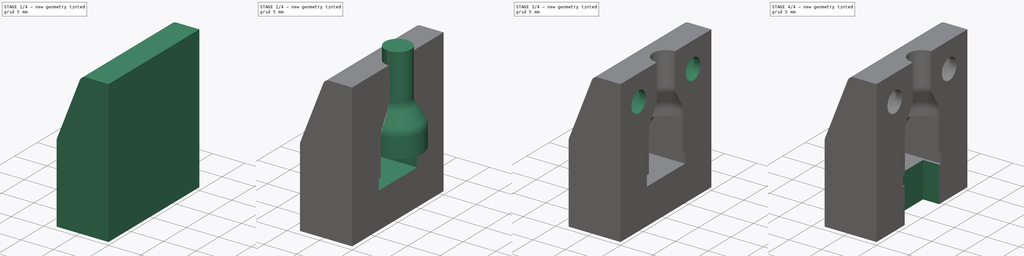
[diagram: build sequence overview — one tinted view per stage of 4, left to right]
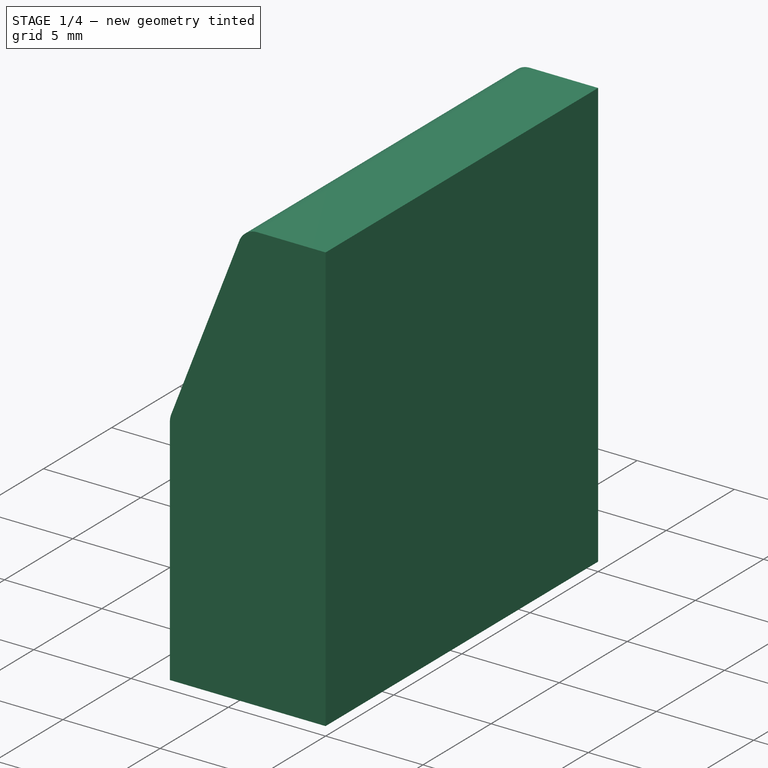
[diagram: stage 1 of 4 — iso view after this stage's code; geometry added in this stage tinted green]
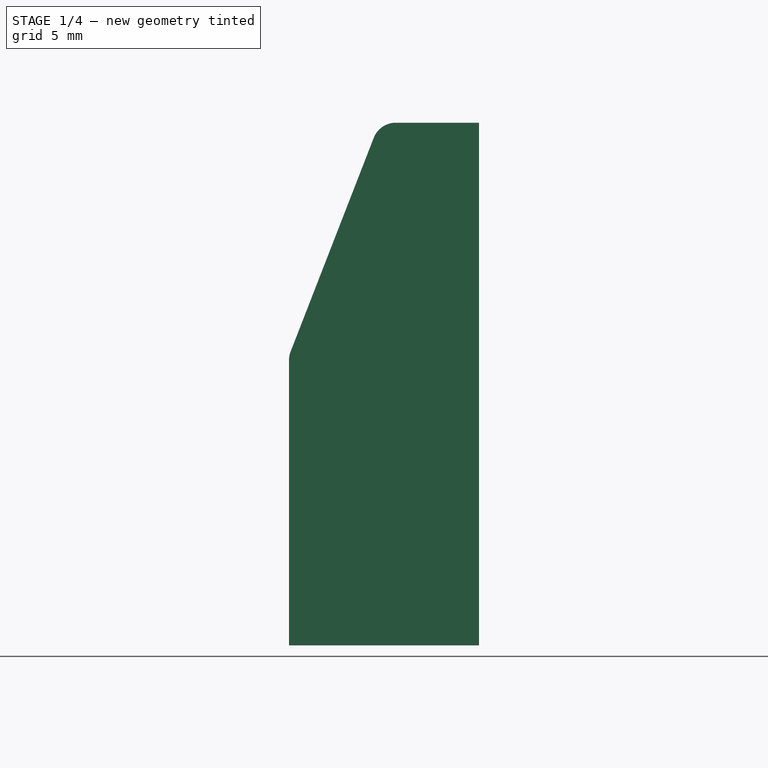
[diagram: stage 1 of 4 — front view after this stage's code; geometry added in this stage tinted green]
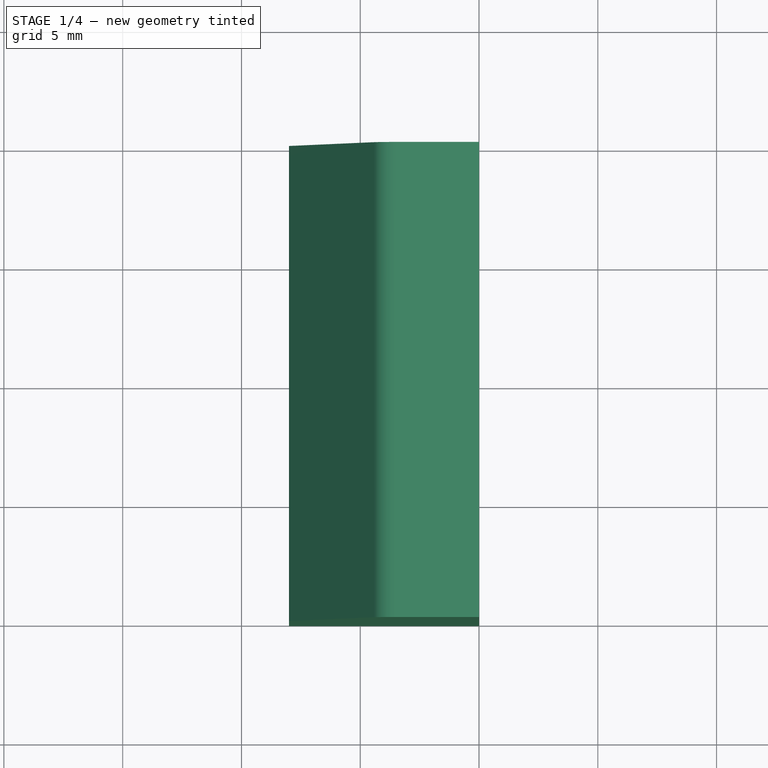
[diagram: stage 1 of 4 — top view after this stage's code; geometry added in this stage tinted green]
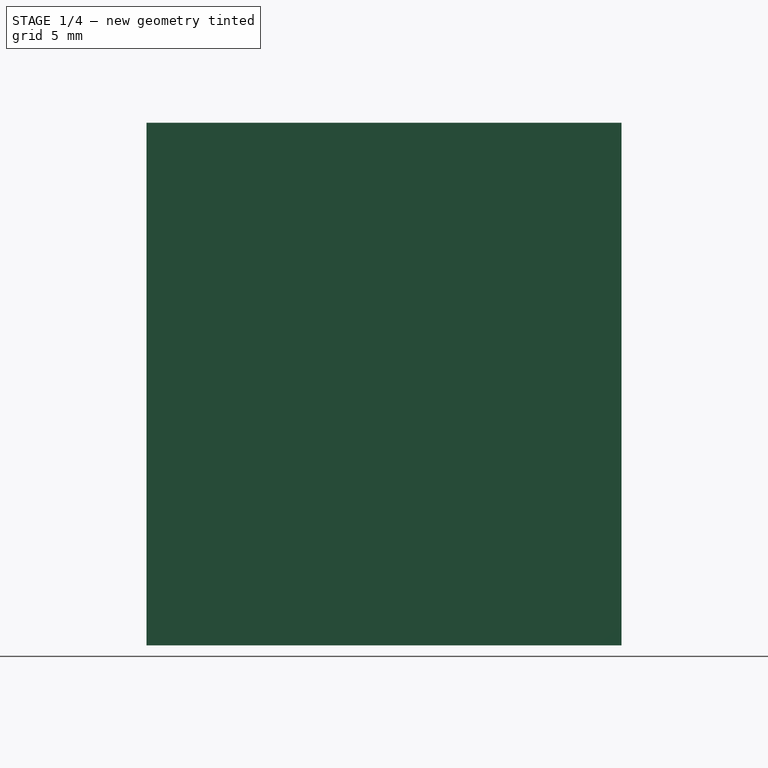
[diagram: stage 1 of 4 — right view after this stage's code; geometry added in this stage tinted green]
FCSTD DOCUMENT  (FreeCAD 0.16R6712 (Git))
Label: Coquille-1-Adaptateur-ICSP-6
License: All rights reserved
LicenseURL: http://en.wikipedia.org/wiki/All_rights_reserved
objects: Sketcher::SketchObject×8, PartDesign::Pocket×5, PartDesign::Pad×2, Part::Cut×2, App::VRMLObject×1, PartDesign::Revolution×1
note: 26 computed .brp shape members not serialized (recipe doc carries the construction recipe); baked Part::Feature solids carry a one-line shape summary decoded from their .brp

FEATURE [App::VRMLObject] CarteAdapt_ICSP6  label="CarteAdapt-ICSP6"
  Placement = pos=(-124,89,6.3) rot=(0,0,1;0rad)
FEATURE [Sketcher::SketchObject] Sketch
  Placement = pos=(0,0,0) rot=(-1,0,0;4.71239rad)
  sketch-geometry (7):
    g0: LineSegment StartX=0 StartY=0 StartZ=0 EndX=0 EndY=22 EndZ=0
    g1: LineSegment StartX=0 StartY=22 StartZ=0 EndX=-3.5 EndY=22 EndZ=0
    g2: LineSegment StartX=-4.432 StartY=21.3624 StartZ=0 EndX=-7.932 EndY=12.3624 EndZ=0
    g3: LineSegment StartX=-8 StartY=12 StartZ=0 EndX=-8 EndY=0 EndZ=0
    g4: LineSegment StartX=-8 StartY=0 StartZ=0 EndX=0 EndY=0 EndZ=0
    g5: ArcOfCircle CenterX=-7 CenterY=12 CenterZ=0 NormalX=0 NormalY=0 NormalZ=1 Radius=1 StartAngle=2.7707 EndAngle=3.14159
    g6: ArcOfCircle CenterX=-3.5 CenterY=21 CenterZ=0 NormalX=0 NormalY=0 NormalZ=1 Radius=1 StartAngle=1.5708 EndAngle=2.7707
  constraints (18):
    c: Vertical(g0)
    c: Coincident(g0,g1)
    c: Horizontal(g1)
    c: Vertical(g3)
    c: Coincident(g3,g4)
    c: Coincident(g4,g0)
    c: Horizontal(g4)
    c: Coincident(g0,g-1)
    c: DistanceX(g4,g4) = 8
    c: Tangent(g2,g5) = -1.5708
    c: Tangent(g3,g5) = -1.5708
    c: Tangent(g1,g6) = -1.5708
    c: Tangent(g2,g6) = -1.5708
    c: DistanceX(g1,g1) = 3.5
    c: Radius(g6) = 1
    c: Equal(g6,g5)
    c: DistanceY(g3,g3) = 12
    c: DistanceY(g0,g0) = 22
FEATURE [PartDesign::Pad] Pad
  Length = 20
  Length2 = 100
  Midplane = true
  Placement = pos=(0,0,0) rot=(-1,0,0;4.71239rad)
  Sketch = -> Sketch
  Type = 0
FEATURE [PartDesign::Pad] Pad001
  Length = 7.5
  Length2 = 100
  Midplane = true
  Placement = pos=(0,0,0) rot=(-1,0,0;4.71239rad)
  Sketch = -> Sketch005
  Type = 0
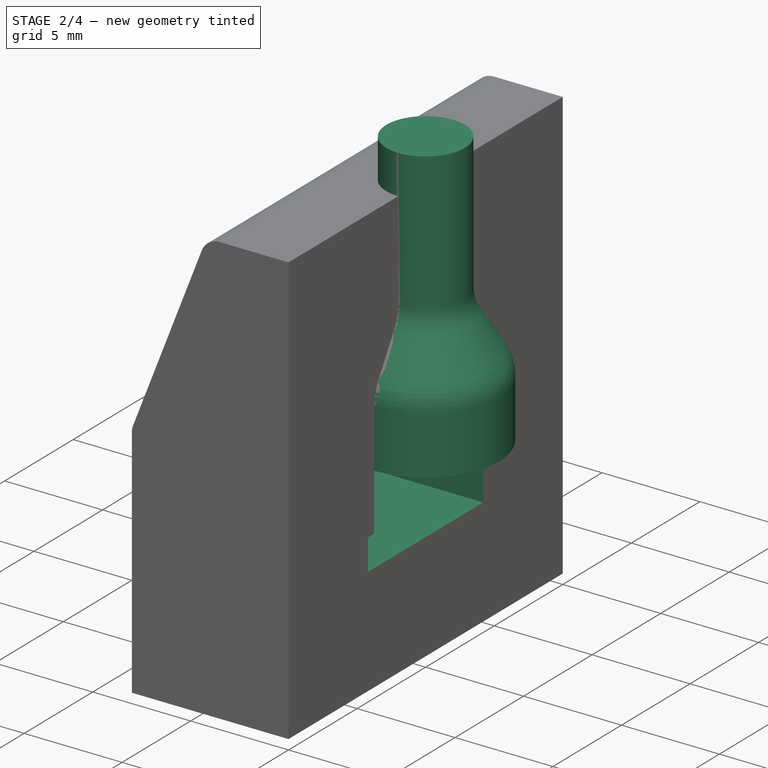
[diagram: stage 2 of 4 — iso view after this stage's code; geometry added in this stage tinted green]
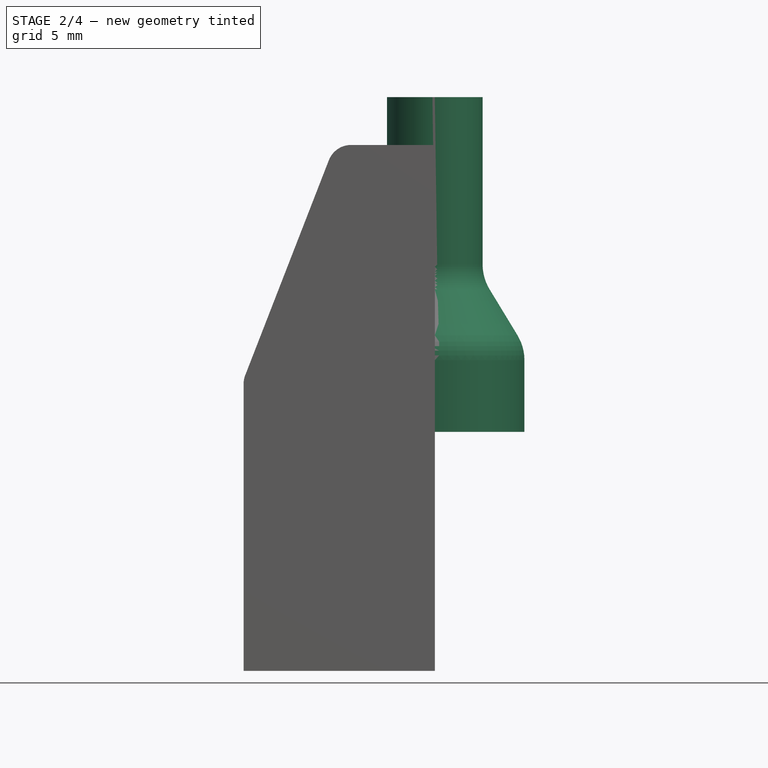
[diagram: stage 2 of 4 — front view after this stage's code; geometry added in this stage tinted green]
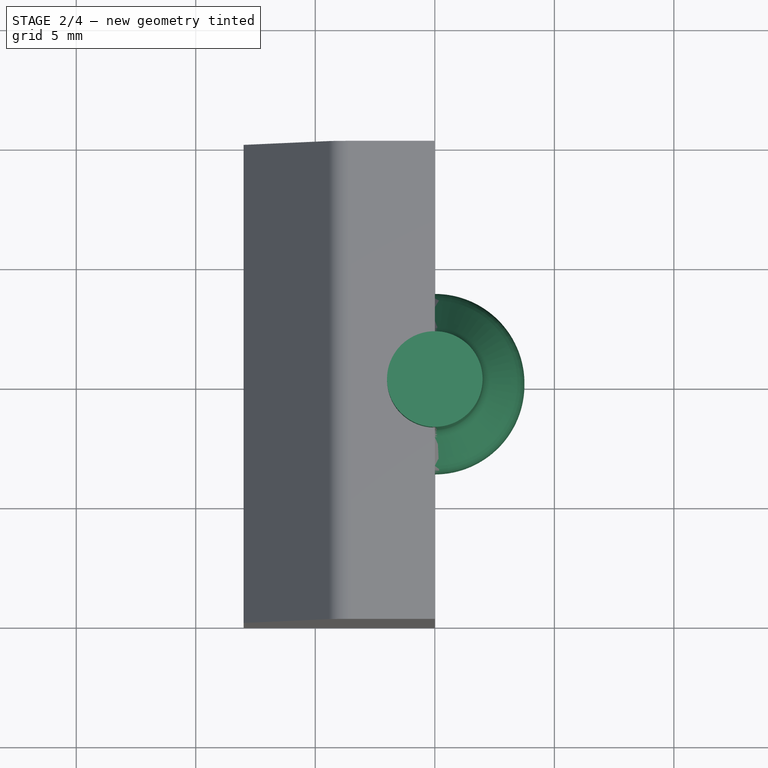
[diagram: stage 2 of 4 — top view after this stage's code; geometry added in this stage tinted green]
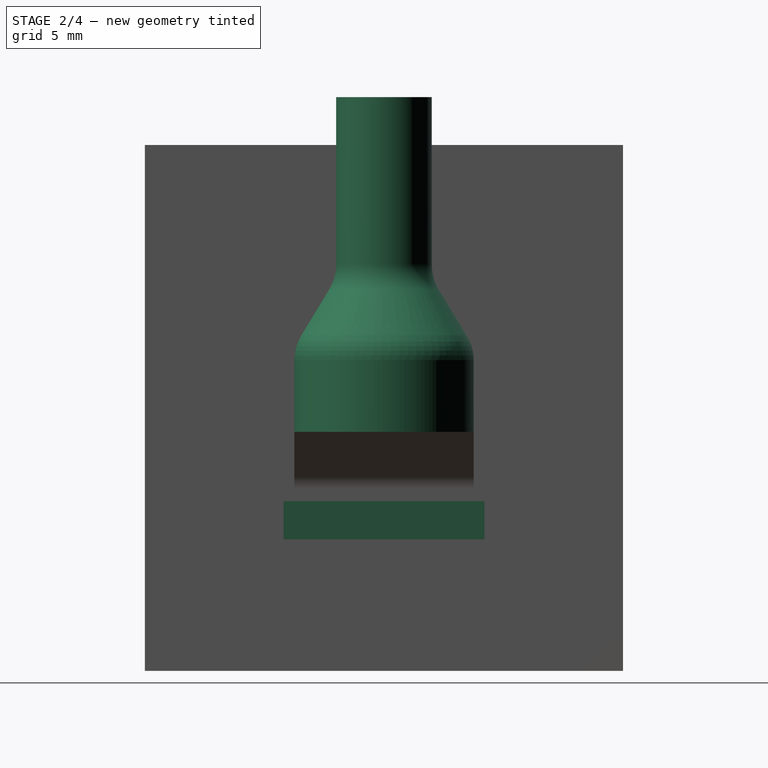
[diagram: stage 2 of 4 — right view after this stage's code; geometry added in this stage tinted green]
FEATURE [Sketcher::SketchObject] Sketch002
  Placement = pos=(0,0,0) rot=(0.707107,0,0.707107;3.14159rad)
  Support = -> Pad [Face1]
  sketch-geometry (4):
    g0: LineSegment StartX=5.5 StartY=4.2 StartZ=0 EndX=7.1 EndY=4.2 EndZ=0
    g1: LineSegment StartX=7.1 StartY=4.2 StartZ=0 EndX=7.1 EndY=-4.2 EndZ=0
    g2: LineSegment StartX=7.1 StartY=-4.2 StartZ=0 EndX=5.5 EndY=-4.2 EndZ=0
    g3: LineSegment StartX=5.5 StartY=-4.2 StartZ=0 EndX=5.5 EndY=4.2 EndZ=0
  constraints (12):
    c: Coincident(g0,g1)
    c: Coincident(g1,g2)
    c: Coincident(g2,g3)
    c: Coincident(g3,g0)
    c: Horizontal(g0)
    c: Horizontal(g2)
    c: Vertical(g1)
    c: Vertical(g3)
    c: DistanceX(g0) = 5.5
    c: DistanceX(g0,g0) = 1.6
    c: DistanceY(g3,g3) = 8.4
    c: DistanceY(g0) = 4.2
FEATURE [PartDesign::Pocket] Pocket
  Length = 7
  Placement = pos=(0,0,0) rot=(-1,0,0;4.71239rad)
  Sketch = -> Sketch002
  Type = 0
FEATURE [Sketcher::SketchObject] Sketch004
  Placement = pos=(0,0,0) rot=(0.57735,0.57735,0.57735;2.0944rad)
  sketch-geometry (8):
    g0: LineSegment StartX=0 StartY=24 StartZ=0 EndX=0 EndY=10 EndZ=0
    g1: LineSegment StartX=0 StartY=10 StartZ=0 EndX=3.75 EndY=10 EndZ=0
    g2: LineSegment StartX=3.75 StartY=10 StartZ=0 EndX=3.75 EndY=13 EndZ=0
    g3: LineSegment StartX=3.4592 StartY=14.0386 StartZ=0 EndX=2.2908 EndY=15.9614 EndZ=0
    g4: LineSegment StartX=2 StartY=17 StartZ=0 EndX=2 EndY=24 EndZ=0
    g5: LineSegment StartX=2 StartY=24 StartZ=0 EndX=0 EndY=24 EndZ=0
    g6: ArcOfCircle CenterX=4 CenterY=17 CenterZ=0 NormalX=0 NormalY=0 NormalZ=1 Radius=2 StartAngle=3.14159 EndAngle=3.68761
    g7: ArcOfCircle CenterX=1.75 CenterY=13 CenterZ=0 NormalX=0 NormalY=0 NormalZ=1 Radius=2 StartAngle=0 EndAngle=0.546017
  constraints (22):
    c: Vertical(g0)
    c: Coincident(g0,g1)
    c: Coincident(g1,g2)
    c: Vertical(g2)
    c: Vertical(g4)
    c: Coincident(g4,g5)
    c: Coincident(g5,g0)
    c: Horizontal(g5)
    c: Horizontal(g1)
    c: PointOnObject(g0,g-2)
    c: DistanceX(g1,g1) = 3.75
    c: DistanceY(g0) = 10
    c: DistanceY(g0,g0) = 14
    c: DistanceX(g5,g5) = 2
    c: Tangent(g4,g6) = 1.5708
    c: Tangent(g3,g6) = 1.5708
    c: Tangent(g3,g7) = -1.5708
    c: Tangent(g2,g7) = -1.5708
    c: DistanceY(g2,g2) = 3
    c: Radius(g7) = 2
    c: Equal(g6,g7)
    c: DistanceY(g1,g4) = 7
FEATURE [Sketcher::SketchObject] Sketch005
  Placement = pos=(0,0,0) rot=(-1,0,0;4.71239rad)
  sketch-geometry (6):
    g0: LineSegment StartX=-6.5 StartY=7.1 StartZ=0 EndX=-6.5 EndY=7.6 EndZ=0
    g1: LineSegment StartX=-6.3302 StartY=8.15747 StartZ=0 EndX=-3.75 EndY=12 EndZ=0
    g2: LineSegment StartX=-3.75 StartY=12 StartZ=0 EndX=0 EndY=12 EndZ=0
    g3: LineSegment StartX=0 StartY=12 StartZ=0 EndX=0 EndY=7.1 EndZ=0
    g4: LineSegment StartX=0 StartY=7.1 StartZ=0 EndX=-6.5 EndY=7.1 EndZ=0
    g5: ArcOfCircle CenterX=-5.5 CenterY=7.6 CenterZ=0 NormalX=0 NormalY=0 NormalZ=1 Radius=1 StartAngle=2.55026 EndAngle=3.14159
  constraints (17):
    c: Vertical(g0)
    c: Coincident(g1,g2)
    c: Horizontal(g2)
    c: Coincident(g2,g3)
    c: Vertical(g3)
    c: Coincident(g3,g4)
    c: Horizontal(g4)
    c: Coincident(g4,g0)
    c: PointOnObject(g3,g-2)
    c: DistanceX(g2,g2) = 3.75
    c: DistanceY(g3) = 7.1
    c: DistanceX(g4,g4) = 6.5
    c: DistanceY(g2) = 12
    c: Tangent(g0,g5) = 1.5708
    c: Tangent(g1,g5) = 1.5708
    c: Radius(g5) = 1
    c: DistanceY(g0,g0) = 0.5
FEATURE [PartDesign::Revolution] Revolution
  Angle = 360
  Axis = (0,0,1)
  Base = (0,0,0)
  Placement = pos=(0,0,0) rot=(0.57735,0.57735,0.57735;2.0944rad)
  ReferenceAxis = -> Sketch004 [V_Axis]
  Reversed = true
  Sketch = -> Sketch004
FEATURE [Part::Cut] Cut
  Base = -> Pocket
  Tool = -> Pad001
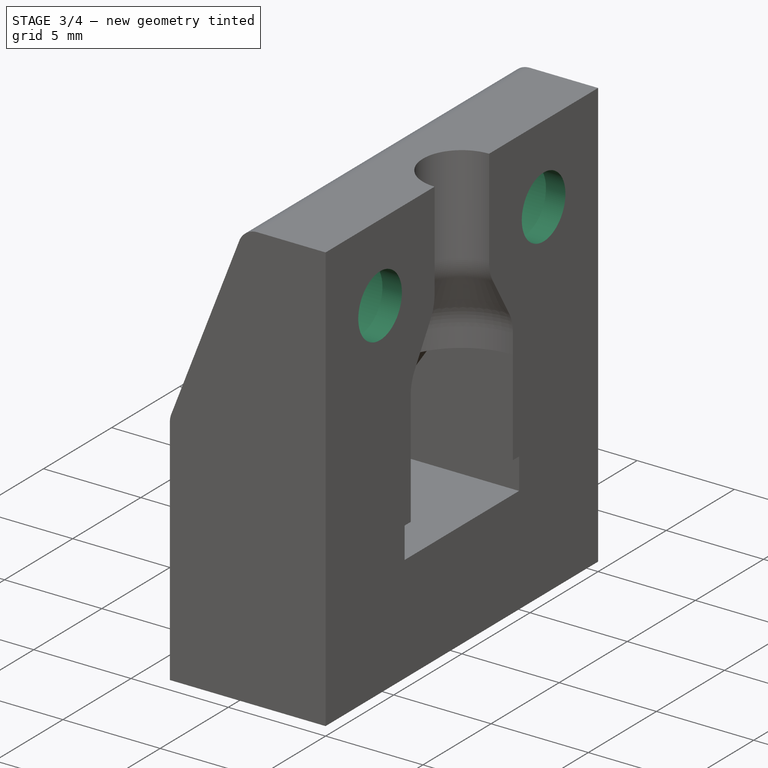
[diagram: stage 3 of 4 — iso view after this stage's code; geometry added in this stage tinted green]
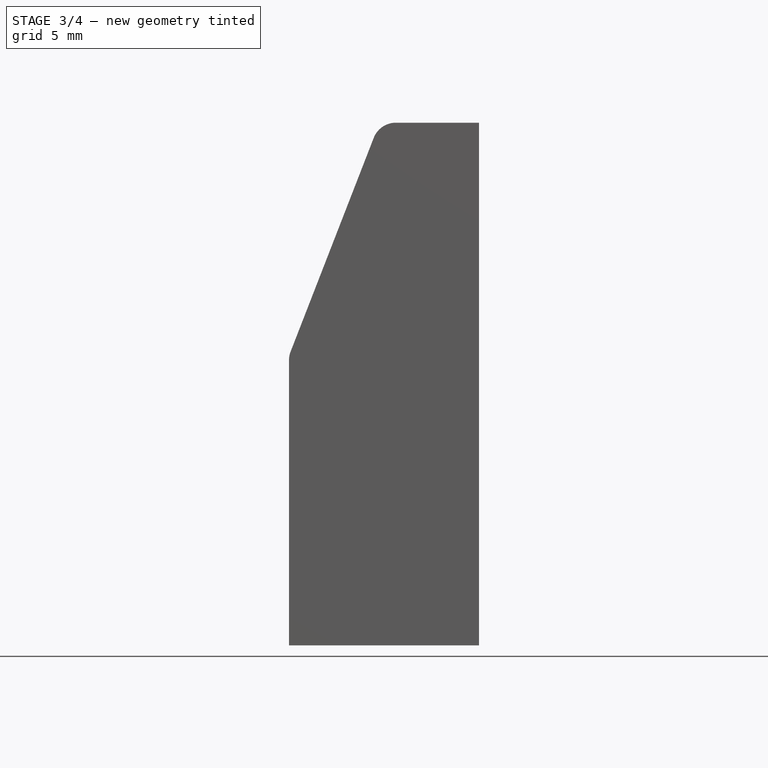
[diagram: stage 3 of 4 — front view after this stage's code; geometry added in this stage tinted green]
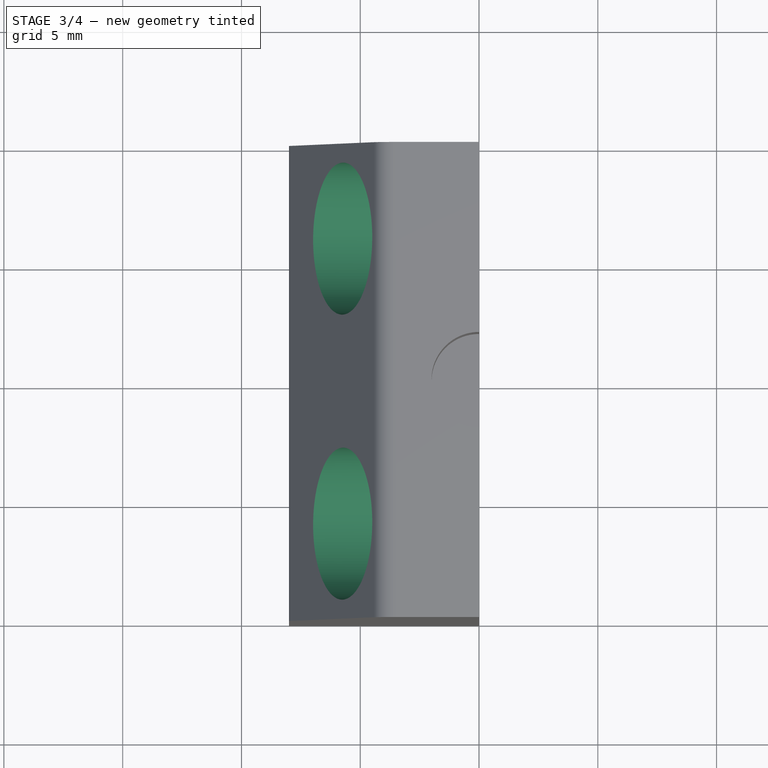
[diagram: stage 3 of 4 — top view after this stage's code; geometry added in this stage tinted green]
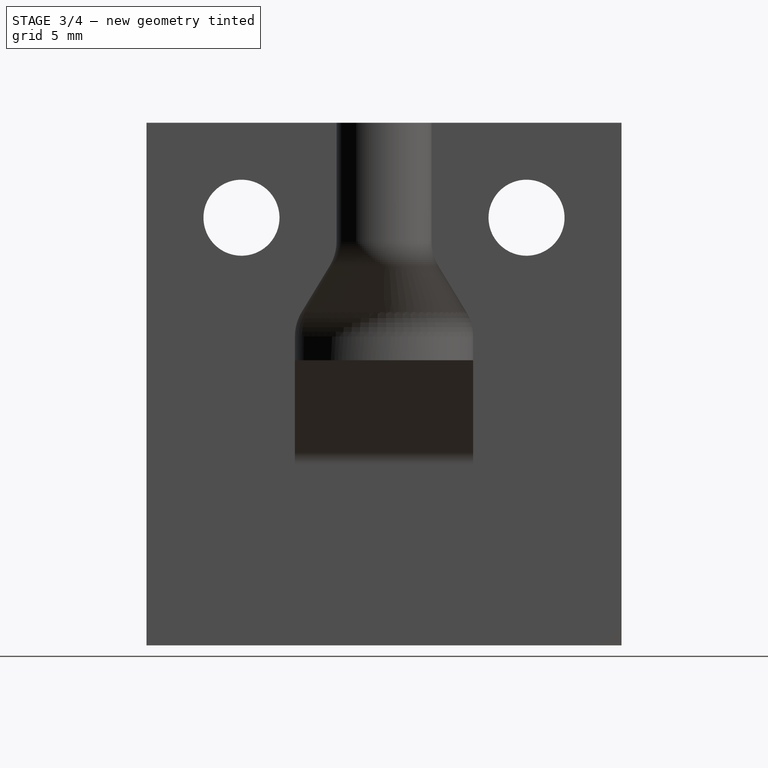
[diagram: stage 3 of 4 — right view after this stage's code; geometry added in this stage tinted green]
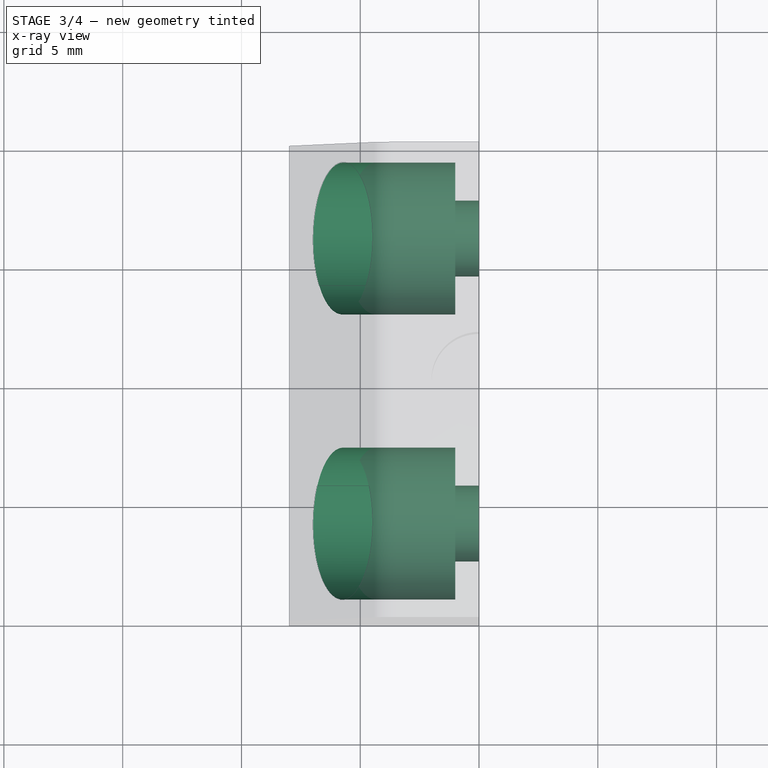
[diagram: stage 3 of 4 — x-ray composite at the top view; earlier geometry ghosted, this stage's added geometry solid]
FEATURE [Part::Cut] Cut001
  Base = -> Cut
  Tool = -> Revolution
FEATURE [Sketcher::SketchObject] Sketch006
  Placement = pos=(-8,0,0) rot=(0.57735,-0.57735,-0.57735;2.0944rad)
  Support = -> Cut001 [Face20]
  sketch-geometry (3):
    g0: Circle CenterX=-6 CenterY=18 CenterZ=0 NormalX=0 NormalY=0 NormalZ=1 Radius=3.2
    g1: Circle CenterX=6 CenterY=18 CenterZ=0 NormalX=0 NormalY=0 NormalZ=1 Radius=3.2
    g2: LineSegment [constr] StartX=-6 StartY=18 StartZ=0 EndX=6 EndY=18 EndZ=0
  constraints (8):
    c: Radius(g0) = 3.2
    c: Equal(g1,g0)
    c: Horizontal(g2)
    c: Coincident(g1,g2)
    c: DistanceX(g2,g2) = 12
    c: DistanceX(g1) = 6
    c: DistanceY(g1) = 18
    c: Coincident(g0,g2)
FEATURE [PartDesign::Pocket] Pocket001
  Length = 7
  Sketch = -> Sketch006
  Type = 0
FEATURE [Sketcher::SketchObject] Sketch007
  Placement = pos=(-8,0,0) rot=(0.57735,-0.57735,-0.57735;2.0944rad)
  Support = -> Pocket001 [Face20]
  sketch-geometry (3):
    g0: Circle CenterX=-6 CenterY=18 CenterZ=0 NormalX=0 NormalY=0 NormalZ=1 Radius=1.6
    g1: Circle CenterX=6 CenterY=18 CenterZ=0 NormalX=0 NormalY=0 NormalZ=1 Radius=1.6
    g2: LineSegment [constr] StartX=-6 StartY=18 StartZ=0 EndX=6 EndY=18 EndZ=0
  constraints (8):
    c: Radius(g0) = 1.6
    c: Equal(g1,g0)
    c: Horizontal(g2)
    c: Coincident(g1,g2)
    c: DistanceX(g2,g2) = 12
    c: DistanceX(g1) = 6
    c: DistanceY(g1) = 18
    c: Coincident(g0,g2)
FEATURE [PartDesign::Pocket] Pocket002
  Length = 8
  Sketch = -> Sketch007
  Type = 0
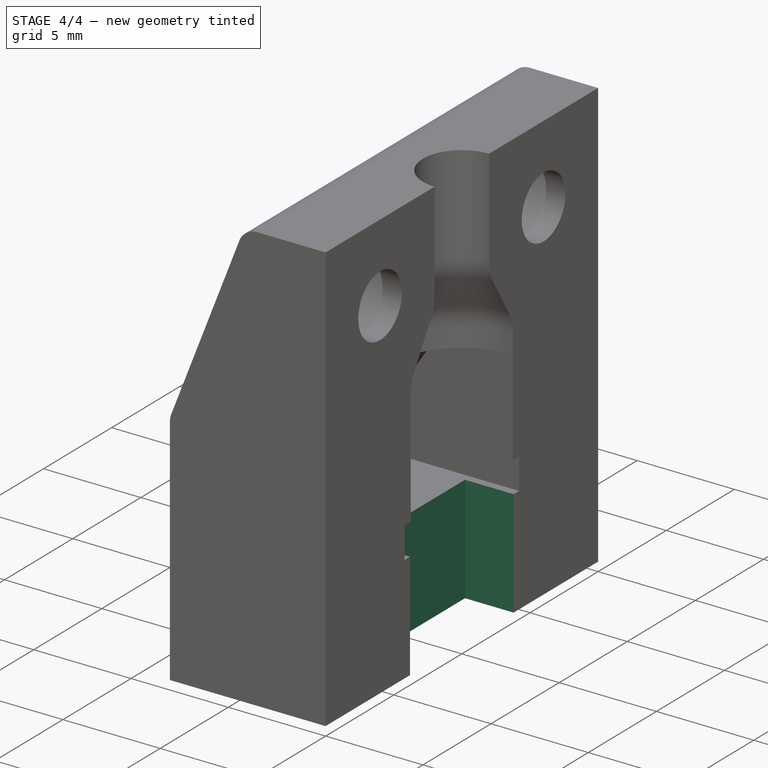
[diagram: stage 4 of 4 — iso view after this stage's code; geometry added in this stage tinted green]
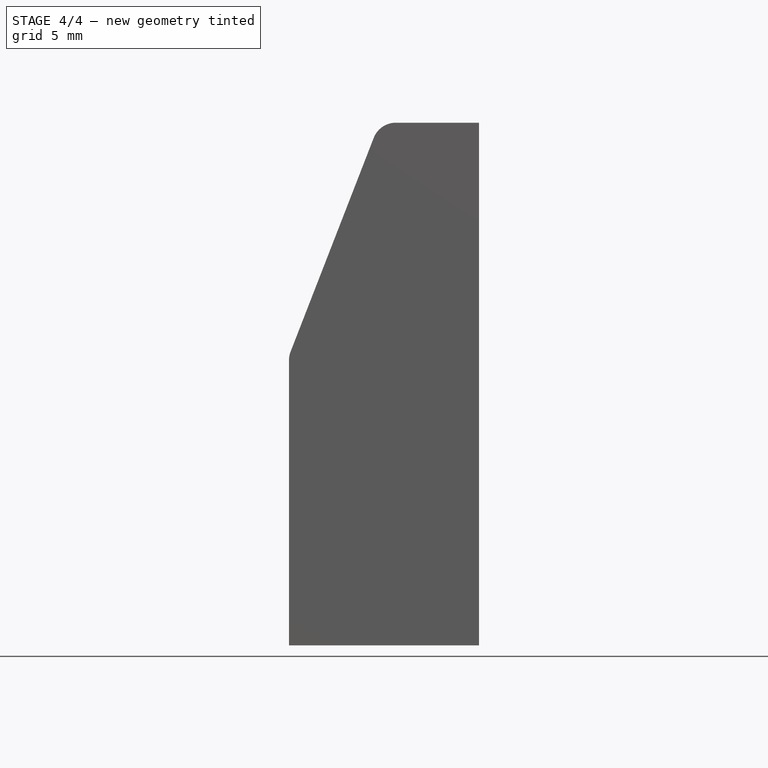
[diagram: stage 4 of 4 — front view after this stage's code; geometry added in this stage tinted green]
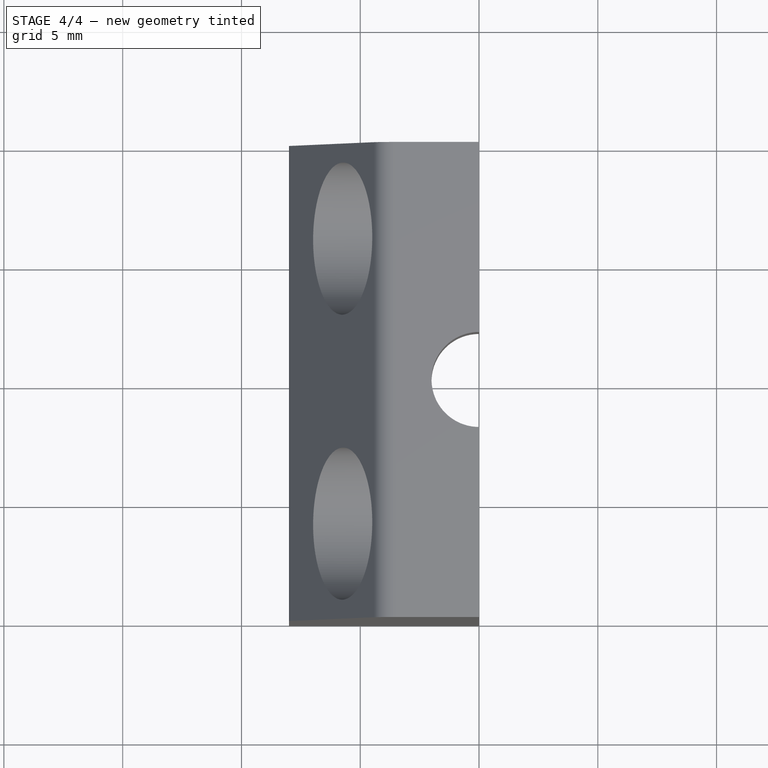
[diagram: stage 4 of 4 — top view after this stage's code; geometry added in this stage tinted green]
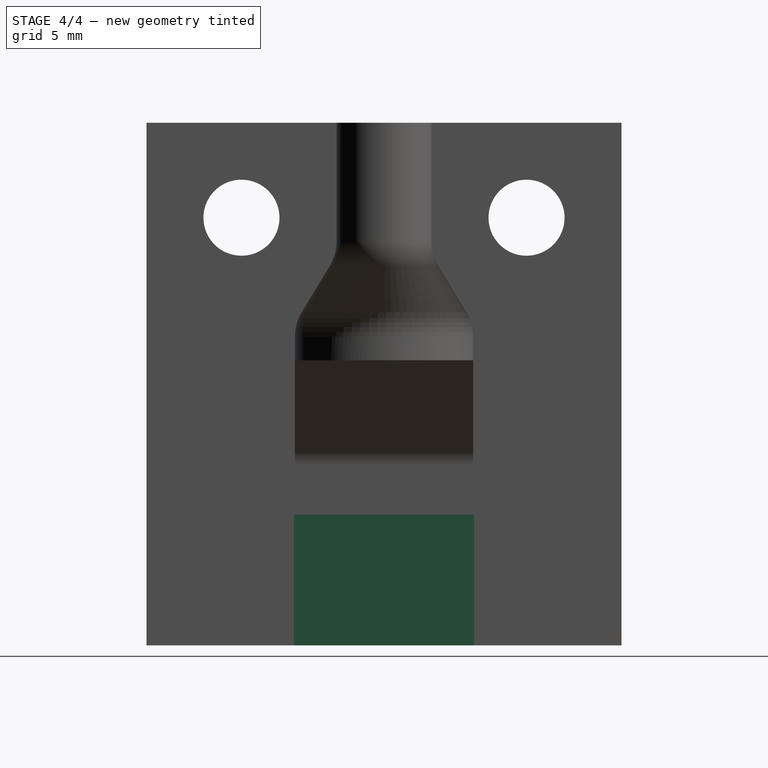
[diagram: stage 4 of 4 — right view after this stage's code; geometry added in this stage tinted green]
FEATURE [Sketcher::SketchObject] Sketch008
  Placement = pos=(0,0,0) rot=(1,0,0;3.14159rad)
  Support = -> Pocket002 [Face3]
  sketch-geometry (4):
    g0: LineSegment StartX=-2.5 StartY=3.8 StartZ=0 EndX=0 EndY=3.8 EndZ=0
    g1: LineSegment StartX=0 StartY=3.8 StartZ=0 EndX=0 EndY=-3.8 EndZ=0
    g2: LineSegment StartX=0 StartY=-3.8 StartZ=0 EndX=-2.5 EndY=-3.8 EndZ=0
    g3: LineSegment StartX=-2.5 StartY=-3.8 StartZ=0 EndX=-2.5 EndY=3.8 EndZ=0
  constraints (12):
    c: Coincident(g0,g1)
    c: Coincident(g1,g2)
    c: Coincident(g2,g3)
    c: Coincident(g3,g0)
    c: Horizontal(g0)
    c: Horizontal(g2)
    c: Vertical(g1)
    c: Vertical(g3)
    c: PointOnObject(g1,g-2)
    c: DistanceY(g3,g3) = 7.6
    c: DistanceY(g0) = 3.8
    c: DistanceX(g0,g0) = 2.5
FEATURE [PartDesign::Pocket] Pocket003
  Length = 5.5
  Sketch = -> Sketch008
  Type = 0
FEATURE [Sketcher::SketchObject] Sketch009
  Placement = pos=(0,0,0) rot=(1,0,0;3.14159rad)
  Support = -> Pocket003 [Face14]
  sketch-geometry (11):
    g0: LineSegment StartX=-9.5 StartY=7.5 StartZ=0 EndX=-6.5 EndY=7.5 EndZ=0
    g1: LineSegment StartX=-6.5 StartY=7.5 StartZ=0 EndX=-6.5 EndY=4.5 EndZ=0
    g2: LineSegment StartX=-6.5 StartY=4.5 StartZ=0 EndX=-9.5 EndY=4.5 EndZ=0
    g3: LineSegment StartX=-9.5 StartY=4.5 StartZ=0 EndX=-9.5 EndY=7.5 EndZ=0
    g4: LineSegment StartX=-9.5 StartY=-4.5 StartZ=0 EndX=-6.5 EndY=-4.5 EndZ=0
    g5: LineSegment StartX=-6.5 StartY=-4.5 StartZ=0 EndX=-6.5 EndY=-7.5 EndZ=0
    g6: LineSegment StartX=-6.5 StartY=-7.5 StartZ=0 EndX=-9.5 EndY=-7.5 EndZ=0
    g7: LineSegment StartX=-9.5 StartY=-7.5 StartZ=0 EndX=-9.5 EndY=-4.5 EndZ=0
    g8: Circle [constr] CenterX=-8 CenterY=6 CenterZ=0 NormalX=0 NormalY=0 NormalZ=1 Radius=2.12132
    g9: Circle [constr] CenterX=-8 CenterY=-6 CenterZ=0 NormalX=0 NormalY=0 NormalZ=1 Radius=2.12132
    g10: LineSegment [constr] StartX=-8 StartY=6 StartZ=0 EndX=-8 EndY=-6 EndZ=0
  constraints (32):
    c: Coincident(g0,g1)
    c: Coincident(g1,g2)
    c: Coincident(g2,g3)
    c: Coincident(g3,g0)
    c: Horizontal(g0)
    c: Horizontal(g2)
    c: Vertical(g1)
    c: Vertical(g3)
    c: Coincident(g4,g5)
    c: Coincident(g5,g6)
    c: Coincident(g6,g7)
    c: Coincident(g7,g4)
    c: Horizontal(g4)
    c: Horizontal(g6)
    c: Vertical(g5)
    c: Vertical(g7)
    c: Equal(g3,g0)
    c: Equal(g0,g4)
    c: Equal(g4,g7)
    c: PointOnObject(g4,g9)
    c: PointOnObject(g4,g9)
    c: PointOnObject(g5,g9)
    c: PointOnObject(g0,g8)
    c: PointOnObject(g0,g8)
    c: PointOnObject(g1,g8)
    c: DistanceX(g0,g0) = 3
    c: Vertical(g10)
    c: Coincident(g8,g10)
    c: Coincident(g10,g9)
    c: DistanceY(g10,g10) = 12
    c: DistanceX(g8) = -8
    c: DistanceY(g8) = 6
FEATURE [PartDesign::Pocket] Pocket004
  Length = 12
  Sketch = -> Sketch009
  Type = 0
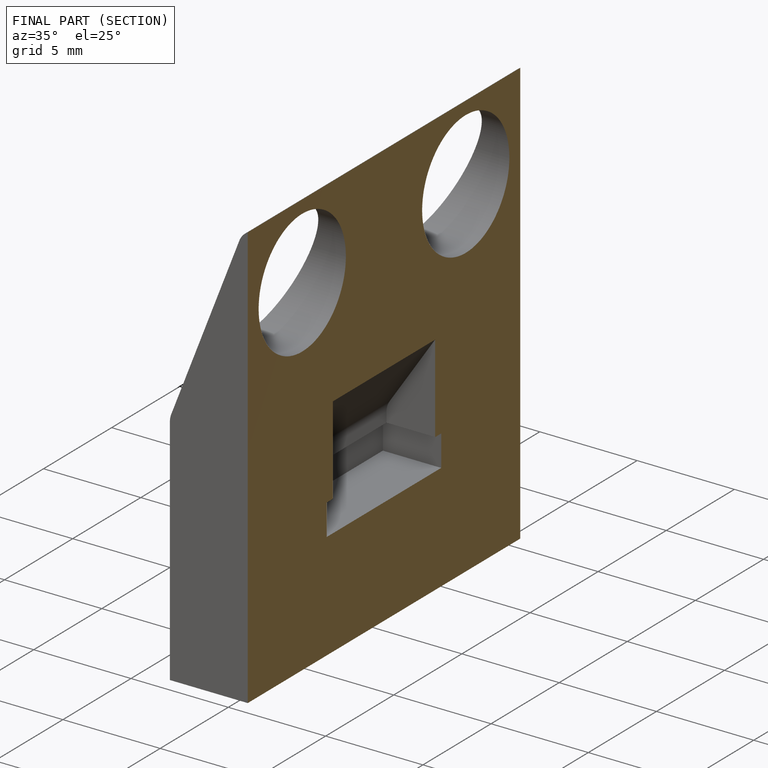
[diagram: finished part — half-section view (interior)]
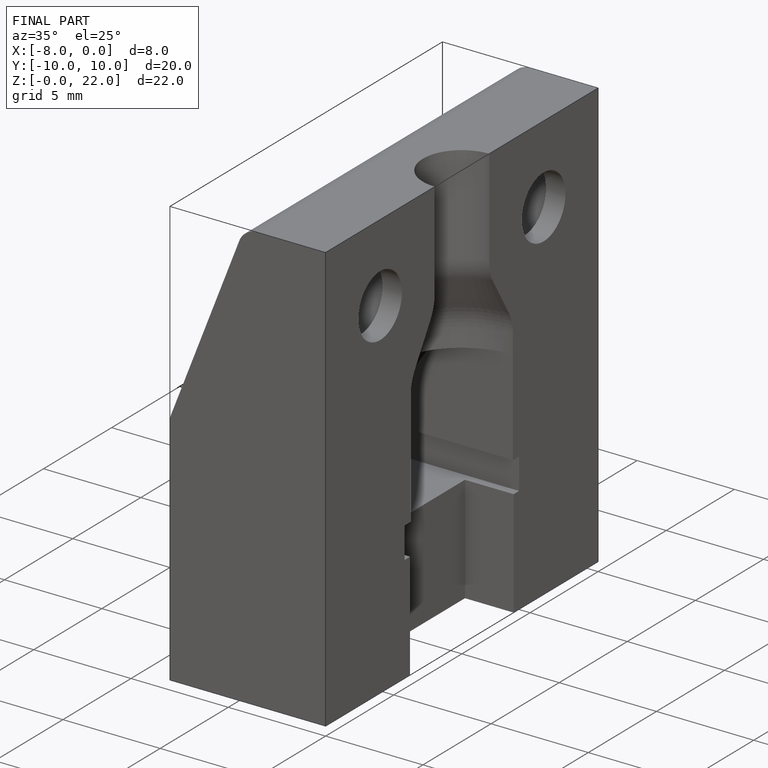
[diagram: finished part — iso view with bounding-box wireframe]
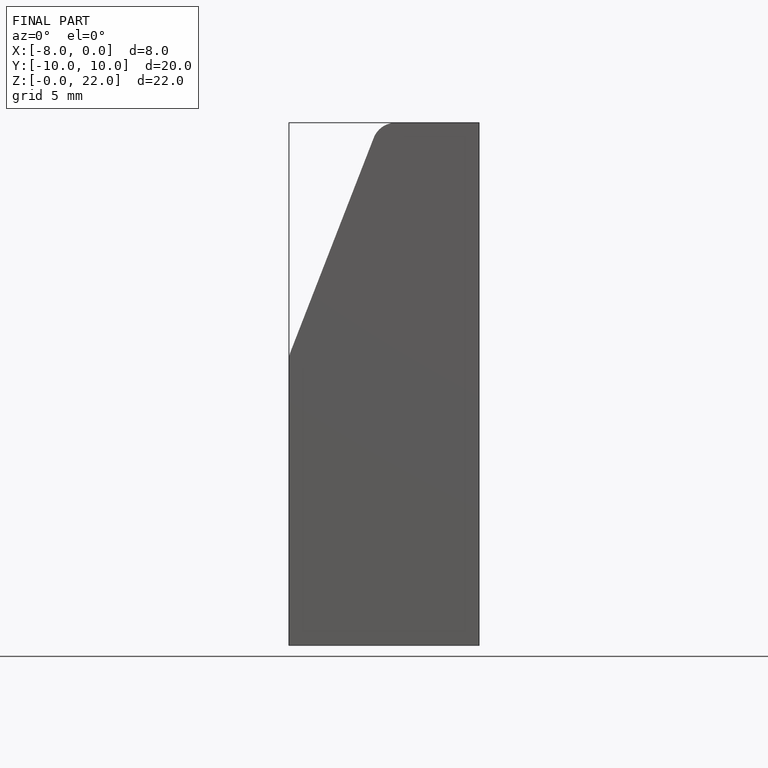
[diagram: finished part — front view with bounding-box wireframe]
